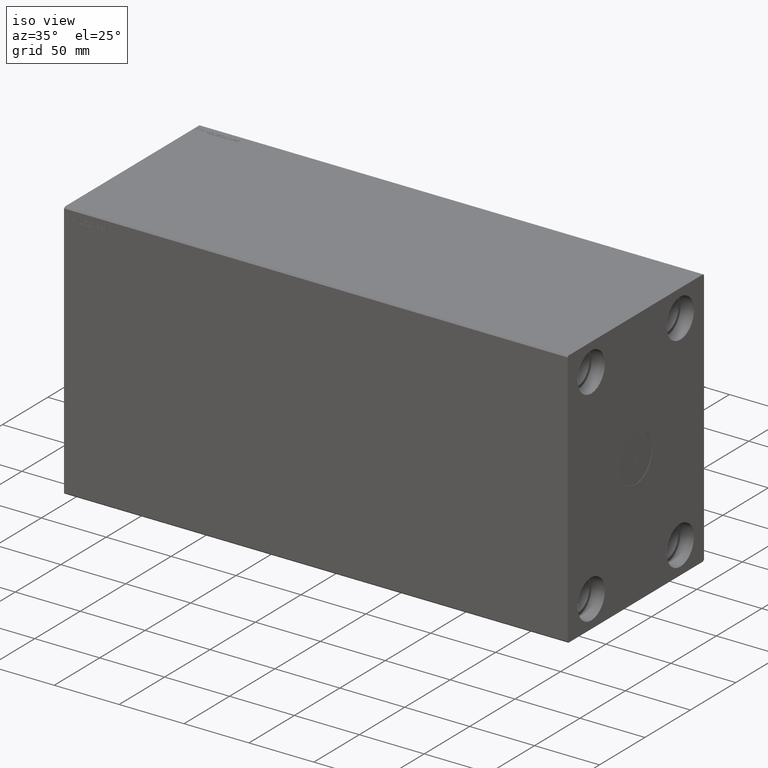
[diagram: clean part render]
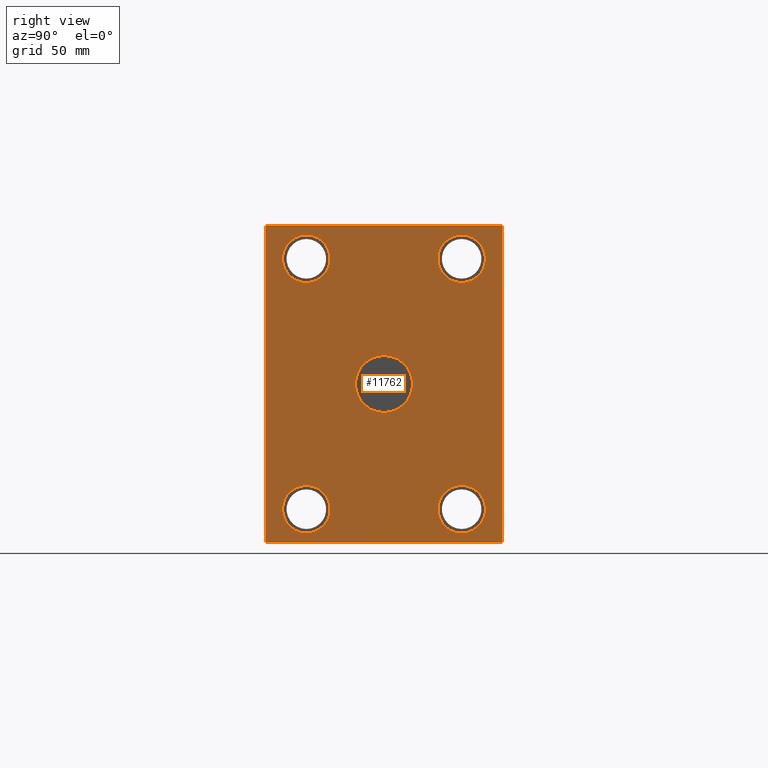
[diagram: tour spotlight — one face highlighted and labeled with its STEP entity id]
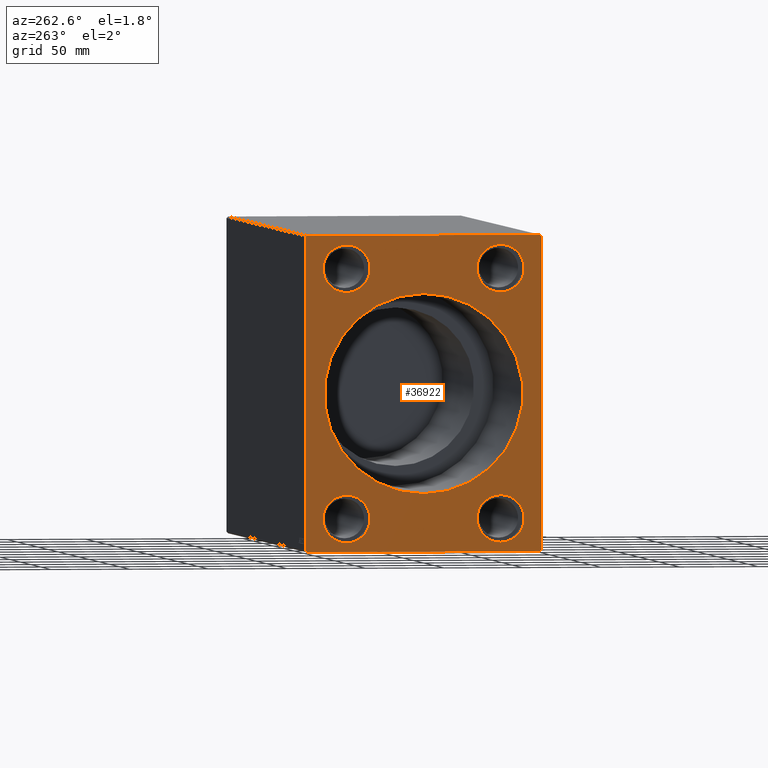
[diagram: tour spotlight — one face highlighted and labeled with its STEP entity id]
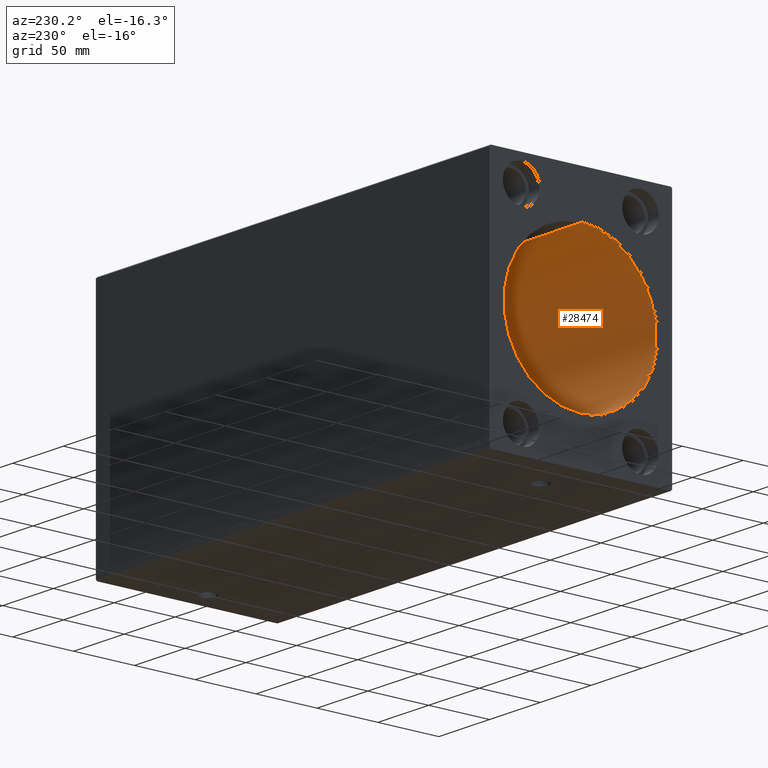
[diagram: tour spotlight — one face highlighted and labeled with its STEP entity id]
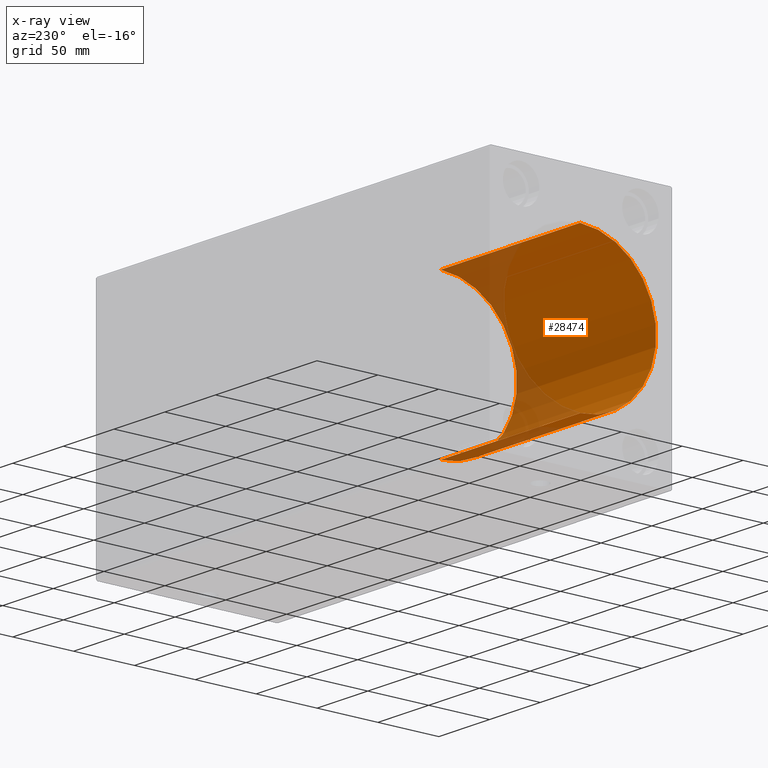
[diagram: x-ray of the same camera — body ghosted, this tour face saturated]
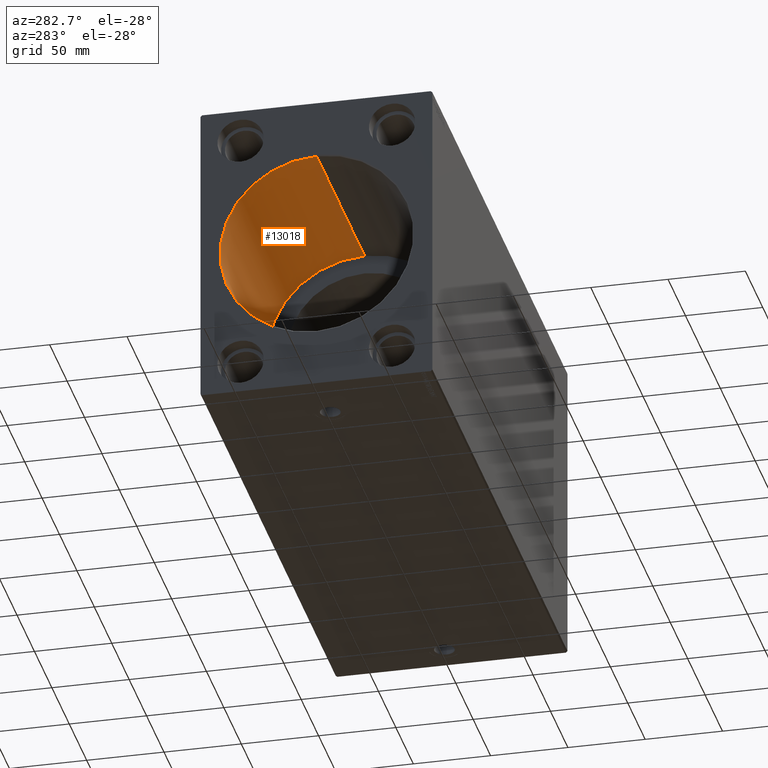
[diagram: tour spotlight — one face highlighted and labeled with its STEP entity id]
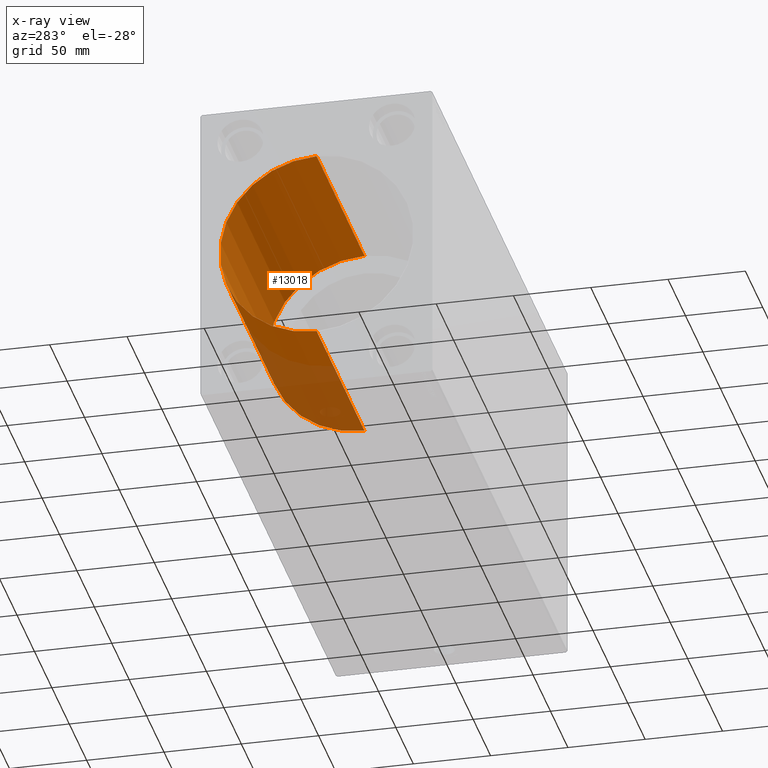
[diagram: x-ray of the same camera — body ghosted, this tour face saturated]
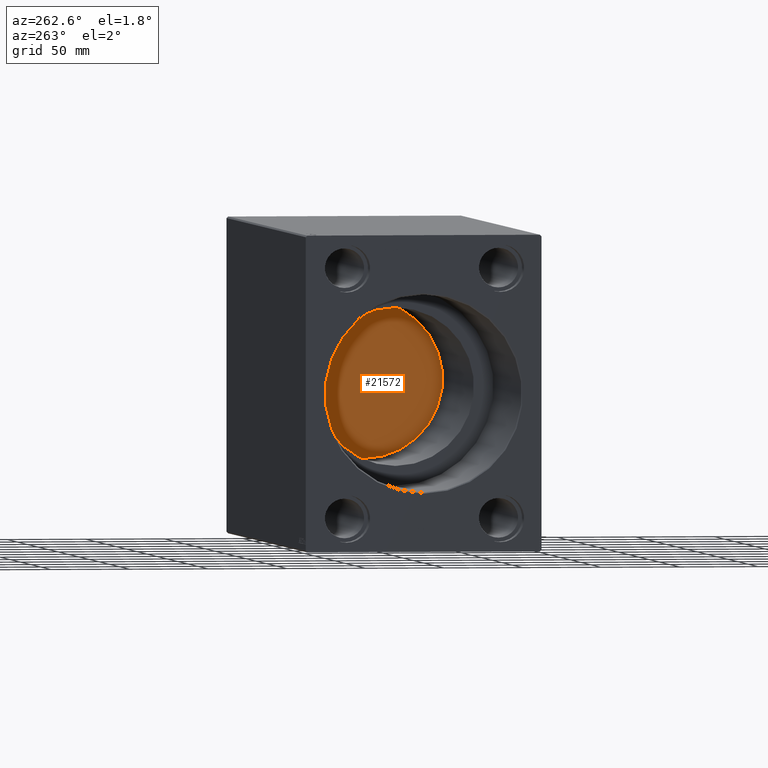
[diagram: tour spotlight — one face highlighted and labeled with its STEP entity id]
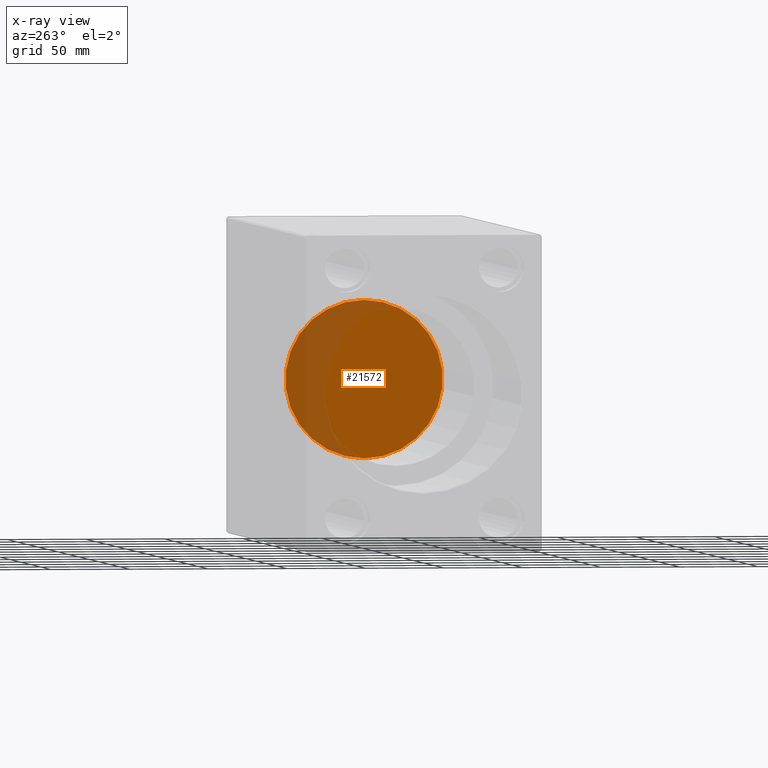
[diagram: x-ray of the same camera — body ghosted, this tour face saturated]
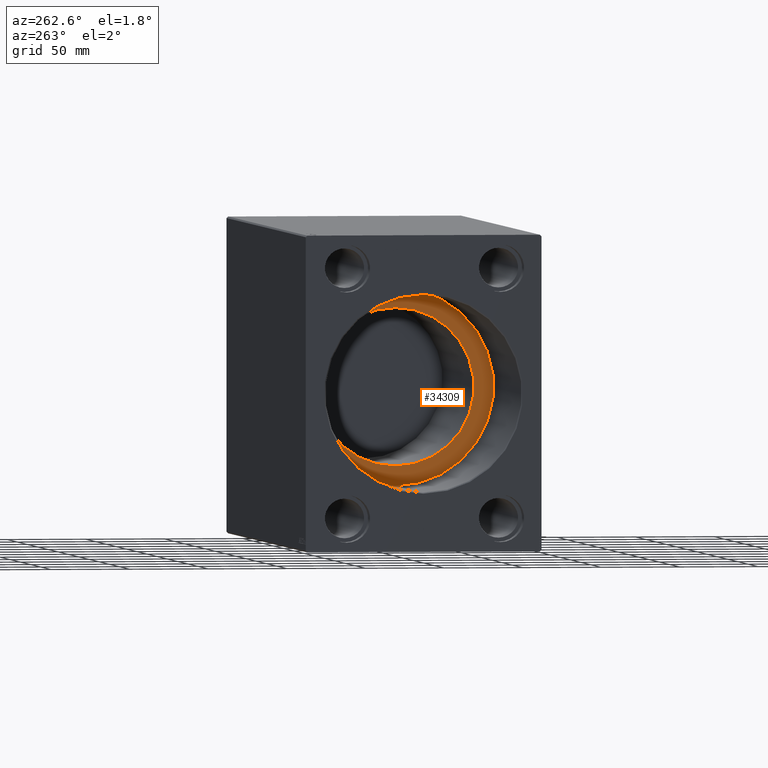
[diagram: tour spotlight — one face highlighted and labeled with its STEP entity id]
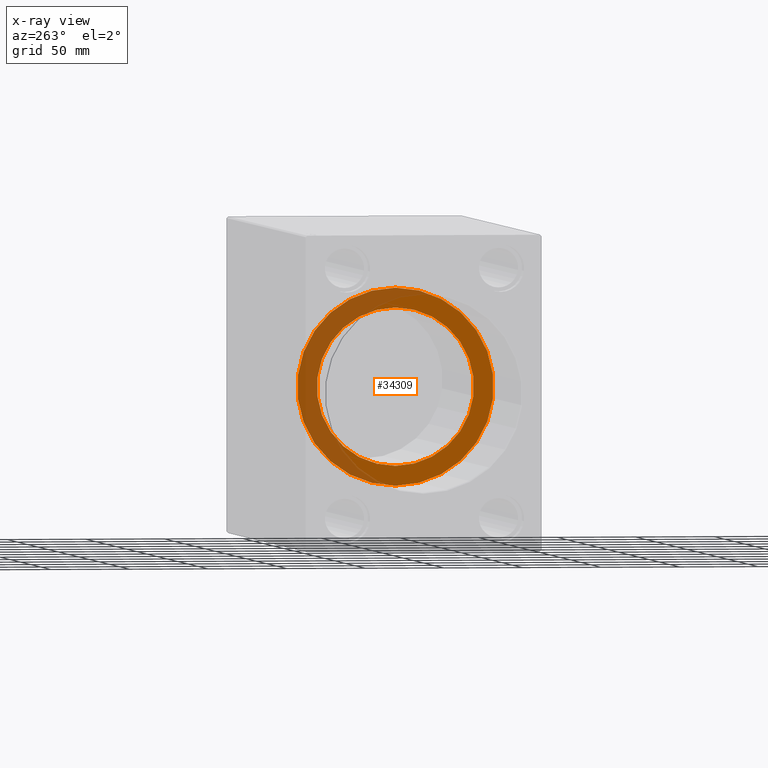
[diagram: x-ray of the same camera — body ghosted, this tour face saturated]
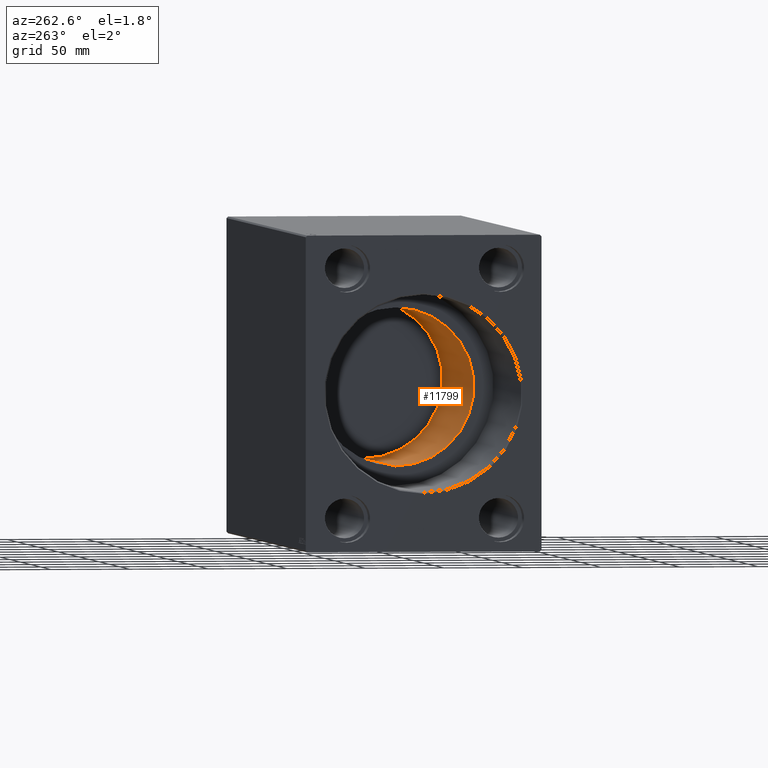
[diagram: tour spotlight — one face highlighted and labeled with its STEP entity id]
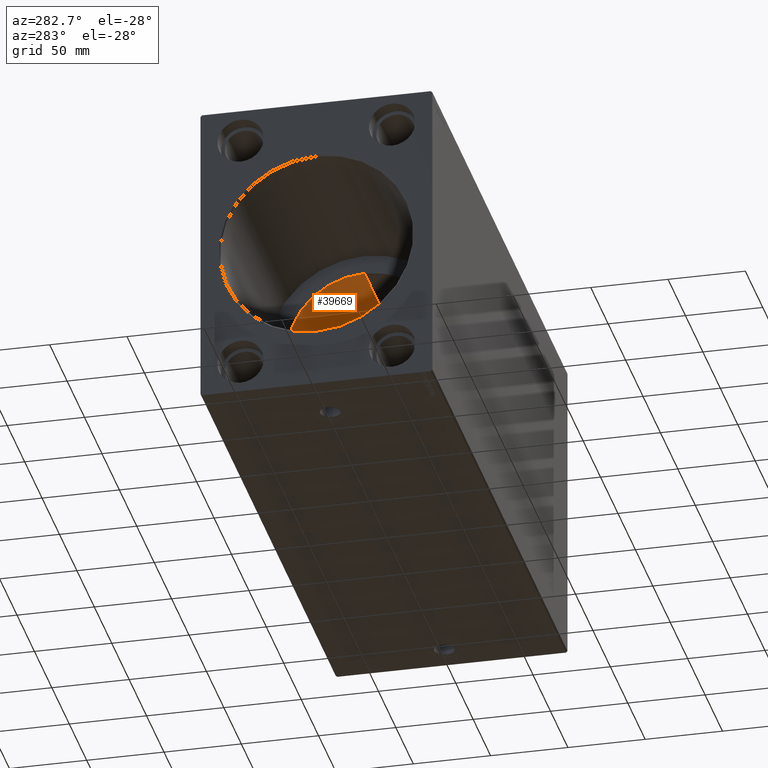
[diagram: tour spotlight — one face highlighted and labeled with its STEP entity id]
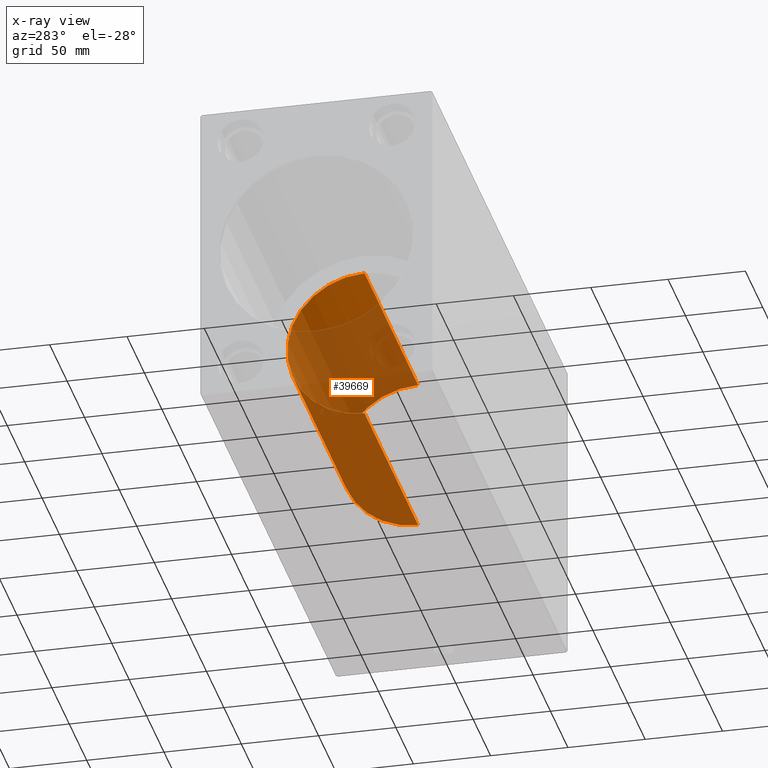
[diagram: x-ray of the same camera — body ghosted, this tour face saturated]
A machine part: a face-by-face anatomy tour. The part has 819 B-rep faces; the first image is the clean iso view, then the 8 largest visible faces are spotlighted one at a time (largest first), each with its STEP entity span.

Face 1 — right view, entity #11762. In plain terms, the highlighted planar face has unit normal (1, 0, 0).
Definition (entity closure, byte-faithful):
#44 = CARTESIAN_POINT ( 'NONE',  ( 388.0000000000000000, 74.00000000000000000, 99.99999999999995737 ) ) ;
#395 = ORIENTED_EDGE ( 'NONE', *, *, #24183, .T. ) ;
#890 = VERTEX_POINT ( 'NONE', #40201 ) ;
#1129 = DIRECTION ( 'NONE',  ( 0.000000000000000000, 0.000000000000000000, -1.000000000000000000 ) ) ;
#1149 = DIRECTION ( 'NONE',  ( 1.000000000000000000, -0.000000000000000000, -0.000000000000000000 ) ) ;
#1209 = DIRECTION ( 'NONE',  ( 0.000000000000000000, 0.000000000000000000, -1.000000000000000000 ) ) ;
#1340 = DIRECTION ( 'NONE',  ( 1.000000000000000000, 0.000000000000000000, 0.000000000000000000 ) ) ;
#1807 = EDGE_LOOP ( 'NONE', ( #8976, #36122 ) ) ;
#1899 = EDGE_CURVE ( 'NONE', #30948, #32729, #18828, .T. ) ;
#2277 = VECTOR ( 'NONE', #6193, 1000.000000000000114 ) ;
#2532 = DIRECTION ( 'NONE',  ( 0.000000000000000000, 0.000000000000000000, -1.000000000000000000 ) ) ;
#2586 = ORIENTED_EDGE ( 'NONE', *, *, #23808, .T. ) ;
#2654 = CARTESIAN_POINT ( 'NONE',  ( 388.0000000000000000, 49.00000000000000711, 94.00000000000001421 ) ) ;
#2717 = LINE ( 'NONE', #28842, #19119 ) ;
#3189 = VERTEX_POINT ( 'NONE', #9616 ) ;
#3331 = CIRCLE ( 'NONE', #12229, 15.00000000000000000 ) ;
#4424 = DIRECTION ( 'NONE',  ( 1.000000000000000000, -0.000000000000000000, -0.000000000000000000 ) ) ;
#4583 = FACE_BOUND ( 'NONE', #1807, .T. ) ;
#4611 = DIRECTION ( 'NONE',  ( 0.000000000000000000, -1.000000000000000000, -9.376883653928687363E-17 ) ) ;
#4719 = VECTOR ( 'NONE', #15012, 1000.000000000000114 ) ;
#5134 = EDGE_CURVE ( 'NONE', #32729, #30948, #29087, .T. ) ;
#5188 = AXIS2_PLACEMENT_3D ( 'NONE', #30477, #1149, #23405 ) ;
#5251 = LINE ( 'NONE', #15087, #15696 ) ;
#5334 = CARTESIAN_POINT ( 'NONE',  ( 388.0000000000000000, -74.00000000000000000, 99.99999999999994316 ) ) ;
#5382 = CARTESIAN_POINT ( 'NONE',  ( 388.0000000000000000, -75.00000000000000000, 98.99999999999994316 ) ) ;
#5738 = EDGE_LOOP ( 'NONE', ( #23827, #9370 ) ) ;
#6161 = DIRECTION ( 'NONE',  ( 0.000000000000000000, 0.000000000000000000, -1.000000000000000000 ) ) ;
#6193 = DIRECTION ( 'NONE',  ( 0.000000000000000000, 0.7071067811865474617, -0.7071067811865474617 ) ) ;
#6620 = ORIENTED_EDGE ( 'NONE', *, *, #21698, .T. ) ;
#6727 = CIRCLE ( 'NONE', #33413, 15.00000000000000000 ) ;
#7985 = CARTESIAN_POINT ( 'NONE',  ( 388.0000000000000000, -48.99999999999999289, 79.00000000000001421 ) ) ;
#8211 = DIRECTION ( 'NONE',  ( -1.000000000000000000, -0.000000000000000000, -0.000000000000000000 ) ) ;
#8385 = DIRECTION ( 'NONE',  ( 0.000000000000000000, -0.7071067811865474617, 0.7071067811865474617 ) ) ;
#8557 = ORIENTED_EDGE ( 'NONE', *, *, #34394, .T. ) ;
#8569 = ORIENTED_EDGE ( 'NONE', *, *, #16053, .F. ) ;
#8866 = VECTOR ( 'NONE', #4611, 1000.000000000000000 ) ;
#8976 = ORIENTED_EDGE ( 'NONE', *, *, #25764, .F. ) ;
#8982 = ORIENTED_EDGE ( 'NONE', *, *, #1899, .F. ) ;
#9370 = ORIENTED_EDGE ( 'NONE', *, *, #16431, .T. ) ;
#9612 = EDGE_CURVE ( 'NONE', #17503, #12232, #18242, .T. ) ;
#9616 = CARTESIAN_POINT ( 'NONE',  ( 388.0000000000000000, 2.204364238465235428E-15, 18.00000000000000000 ) ) ;
#9897 = LINE ( 'NONE', #22946, #36246 ) ;
#10136 = CARTESIAN_POINT ( 'NONE',  ( 388.0000000000000000, 74.00000000000001421, -100.0000000000000426 ) ) ;
#10419 = CARTESIAN_POINT ( 'NONE',  ( 388.0000000000000000, 49.00000000000000711, 79.00000000000001421 ) ) ;
#10975 = VERTEX_POINT ( 'NONE', #18555 ) ;
#10990 = DIRECTION ( 'NONE',  ( -1.000000000000000000, -0.000000000000000000, -0.000000000000000000 ) ) ;
#11196 = DIRECTION ( 'NONE',  ( 0.000000000000000000, 0.000000000000000000, 1.000000000000000000 ) ) ;
#11211 = DIRECTION ( 'NONE',  ( 1.000000000000000000, 0.000000000000000000, 0.000000000000000000 ) ) ;
#11762 = ADVANCED_FACE ( 'NONE', ( #4583, #31323, #21468, #21674, #15038, #33906 ), #40740, .T. ) ;
#12116 = EDGE_LOOP ( 'NONE', ( #33105, #8982 ) ) ;
#12229 = AXIS2_PLACEMENT_3D ( 'NONE', #36064, #36279, #26012 ) ;
#12232 = VERTEX_POINT ( 'NONE', #17252 ) ;
#12797 = CARTESIAN_POINT ( 'NONE',  ( 388.0000000000000000, -48.99999999999999289, -79.00000000000001421 ) ) ;
#12818 = CARTESIAN_POINT ( 'NONE',  ( 388.0000000000000000, -74.99999999999997158, -99.00000000000005684 ) ) ;
#13569 = AXIS2_PLACEMENT_3D ( 'NONE', #15459, #25106, #38162 ) ;
#14345 = VERTEX_POINT ( 'NONE', #44 ) ;
#14834 = CARTESIAN_POINT ( 'NONE',  ( 388.0000000000000000, 0.000000000000000000, 0.000000000000000000 ) ) ;
#15012 = DIRECTION ( 'NONE',  ( 0.000000000000000000, -0.7071067811865474617, -0.7071067811865474617 ) ) ;
#15038 = FACE_BOUND ( 'NONE', #28759, .T. ) ;
#15087 = CARTESIAN_POINT ( 'NONE',  ( 388.0000000000000000, 75.00000000000001421, -99.00000000000004263 ) ) ;
#15402 = AXIS2_PLACEMENT_3D ( 'NONE', #10419, #4424, #1209 ) ;
#15459 = CARTESIAN_POINT ( 'NONE',  ( 388.0000000000000000, 0.000000000000000000, 0.000000000000000000 ) ) ;
#15556 = CARTESIAN_POINT ( 'NONE',  ( 388.0000000000000000, 49.00000000000000711, 64.00000000000001421 ) ) ;
#15696 = VECTOR ( 'NONE', #41196, 1000.000000000000000 ) ;
#15700 = CIRCLE ( 'NONE', #17664, 15.00000000000000000 ) ;
#16053 = EDGE_CURVE ( 'NONE', #12232, #17503, #6727, .T. ) ;
#16234 = LINE ( 'NONE', #12818, #2277 ) ;
#16431 = EDGE_CURVE ( 'NONE', #10975, #19325, #3331, .T. ) ;
#17252 = CARTESIAN_POINT ( 'NONE',  ( 388.0000000000000000, -48.99999999999999289, -64.00000000000001421 ) ) ;
#17406 = AXIS2_PLACEMENT_3D ( 'NONE', #18666, #8211, #31119 ) ;
#17503 = VERTEX_POINT ( 'NONE', #22328 ) ;
#17664 = AXIS2_PLACEMENT_3D ( 'NONE', #27611, #21173, #24179 ) ;
#18217 = AXIS2_PLACEMENT_3D ( 'NONE', #12797, #21806, #2532 ) ;
#18242 = CIRCLE ( 'NONE', #18217, 15.00000000000000000 ) ;
#18427 = LINE ( 'NONE', #24451, #4719 ) ;
#18555 = CARTESIAN_POINT ( 'NONE',  ( 388.0000000000000000, 49.00000000000000711, -64.00000000000001421 ) ) ;
#18666 = CARTESIAN_POINT ( 'NONE',  ( 388.0000000000000000, -48.99999999999999289, 79.00000000000001421 ) ) ;
#18828 = CIRCLE ( 'NONE', #5188, 15.00000000000000000 ) ;
#19011 = ORIENTED_EDGE ( 'NONE', *, *, #23550, .T. ) ;
#19119 = VECTOR ( 'NONE', #37836, 1000.000000000000000 ) ;
#19208 = CARTESIAN_POINT ( 'NONE',  ( 388.0000000000000000, -48.99999999999999289, -79.00000000000001421 ) ) ;
#19281 = EDGE_CURVE ( 'NONE', #3189, #41711, #30765, .T. ) ;
#19291 = VERTEX_POINT ( 'NONE', #38791 ) ;
#19325 = VERTEX_POINT ( 'NONE', #25527 ) ;
#19327 = CARTESIAN_POINT ( 'NONE',  ( 388.0000000000000000, 75.00000000000000000, 98.99999999999995737 ) ) ;
#19380 = CIRCLE ( 'NONE', #31723, 15.00000000000000000 ) ;
#19709 = EDGE_LOOP ( 'NONE', ( #26923, #19011, #6620, #41830, #42035, #2586, #25666, #395 ) ) ;
#19850 = EDGE_CURVE ( 'NONE', #19325, #10975, #15700, .T. ) ;
#20340 = EDGE_LOOP ( 'NONE', ( #8557, #35927 ) ) ;
#20816 = CARTESIAN_POINT ( 'NONE',  ( 388.0000000000000000, 0.000000000000000000, 0.000000000000000000 ) ) ;
#21173 = DIRECTION ( 'NONE',  ( -1.000000000000000000, -0.000000000000000000, -0.000000000000000000 ) ) ;
#21380 = CARTESIAN_POINT ( 'NONE',  ( 388.0000000000000000, 75.00000000000001421, -99.00000000000004263 ) ) ;
#21468 = FACE_BOUND ( 'NONE', #5738, .T. ) ;
#21674 = FACE_OUTER_BOUND ( 'NONE', #19709, .T. ) ;
#21698 = EDGE_CURVE ( 'NONE', #27888, #25910, #18427, .T. ) ;
#21806 = DIRECTION ( 'NONE',  ( 1.000000000000000000, -0.000000000000000000, -0.000000000000000000 ) ) ;
#21810 = CARTESIAN_POINT ( 'NONE',  ( 388.0000000000000000, 74.00000000000001421, -100.0000000000000426 ) ) ;
#22328 = CARTESIAN_POINT ( 'NONE',  ( 388.0000000000000000, -48.99999999999999289, -94.00000000000001421 ) ) ;
#22946 = CARTESIAN_POINT ( 'NONE',  ( 388.0000000000000000, -75.00000000000000000, 98.99999999999994316 ) ) ;
#23216 = VERTEX_POINT ( 'NONE', #24768 ) ;
#23405 = DIRECTION ( 'NONE',  ( 0.000000000000000000, 0.000000000000000000, -1.000000000000000000 ) ) ;
#23550 = EDGE_CURVE ( 'NONE', #14345, #27888, #33938, .T. ) ;
#23615 = VERTEX_POINT ( 'NONE', #19327 ) ;
#23808 = EDGE_CURVE ( 'NONE', #40919, #35040, #2717, .T. ) ;
#23827 = ORIENTED_EDGE ( 'NONE', *, *, #19850, .T. ) ;
#24179 = DIRECTION ( 'NONE',  ( 0.000000000000000000, 0.000000000000000000, 1.000000000000000000 ) ) ;
#24183 = EDGE_CURVE ( 'NONE', #27019, #23615, #5251, .T. ) ;
#24451 = CARTESIAN_POINT ( 'NONE',  ( 388.0000000000000000, -74.00000000000000000, 99.99999999999994316 ) ) ;
#24768 = CARTESIAN_POINT ( 'NONE',  ( 388.0000000000000000, -48.99999999999999289, 94.00000000000001421 ) ) ;
#25064 = EDGE_CURVE ( 'NONE', #25910, #890, #9897, .T. ) ;
#25106 = DIRECTION ( 'NONE',  ( 1.000000000000000000, 0.000000000000000000, 0.000000000000000000 ) ) ;
#25308 = AXIS2_PLACEMENT_3D ( 'NONE', #20816, #1340, #1129 ) ;
#25527 = CARTESIAN_POINT ( 'NONE',  ( 388.0000000000000000, 49.00000000000000711, -94.00000000000001421 ) ) ;
#25666 = ORIENTED_EDGE ( 'NONE', *, *, #38452, .T. ) ;
#25764 = EDGE_CURVE ( 'NONE', #41711, #3189, #41713, .T. ) ;
#25818 = EDGE_CURVE ( 'NONE', #23615, #14345, #41542, .T. ) ;
#25910 = VERTEX_POINT ( 'NONE', #5382 ) ;
#26012 = DIRECTION ( 'NONE',  ( 0.000000000000000000, 0.000000000000000000, 1.000000000000000000 ) ) ;
#26923 = ORIENTED_EDGE ( 'NONE', *, *, #25818, .T. ) ;
#27019 = VERTEX_POINT ( 'NONE', #21380 ) ;
#27449 = CARTESIAN_POINT ( 'NONE',  ( 388.0000000000000000, 0.000000000000000000, -18.00000000000000000 ) ) ;
#27605 = VECTOR ( 'NONE', #31667, 1000.000000000000114 ) ;
#27611 = CARTESIAN_POINT ( 'NONE',  ( 388.0000000000000000, 49.00000000000000711, -79.00000000000001421 ) ) ;
#27888 = VERTEX_POINT ( 'NONE', #5334 ) ;
#28323 = DIRECTION ( 'NONE',  ( 0.000000000000000000, 0.000000000000000000, -1.000000000000000000 ) ) ;
#28736 = VECTOR ( 'NONE', #8385, 1000.000000000000114 ) ;
#28759 = EDGE_LOOP ( 'NONE', ( #28976, #8569 ) ) ;
#28842 = CARTESIAN_POINT ( 'NONE',  ( 388.0000000000000000, -73.99999999999998579, -100.0000000000000426 ) ) ;
#28976 = ORIENTED_EDGE ( 'NONE', *, *, #9612, .F. ) ;
#29087 = CIRCLE ( 'NONE', #15402, 15.00000000000000000 ) ;
#30477 = CARTESIAN_POINT ( 'NONE',  ( 388.0000000000000000, 49.00000000000000711, 79.00000000000001421 ) ) ;
#30765 = CIRCLE ( 'NONE', #13569, 18.00000000000000000 ) ;
#30948 = VERTEX_POINT ( 'NONE', #2654 ) ;
#31119 = DIRECTION ( 'NONE',  ( 0.000000000000000000, 0.000000000000000000, 1.000000000000000000 ) ) ;
#31149 = CARTESIAN_POINT ( 'NONE',  ( 388.0000000000000000, 74.00000000000000000, 99.99999999999995737 ) ) ;
#31323 = FACE_BOUND ( 'NONE', #20340, .T. ) ;
#31622 = EDGE_CURVE ( 'NONE', #890, #40919, #16234, .T. ) ;
#31667 = DIRECTION ( 'NONE',  ( 0.000000000000000000, 0.7071067811865474617, 0.7071067811865474617 ) ) ;
#31723 = AXIS2_PLACEMENT_3D ( 'NONE', #7985, #10990, #11196 ) ;
#32729 = VERTEX_POINT ( 'NONE', #15556 ) ;
#33105 = ORIENTED_EDGE ( 'NONE', *, *, #5134, .F. ) ;
#33413 = AXIS2_PLACEMENT_3D ( 'NONE', #19208, #42122, #6161 ) ;
#33906 = FACE_BOUND ( 'NONE', #12116, .T. ) ;
#33938 = LINE ( 'NONE', #31149, #8866 ) ;
#34039 = CARTESIAN_POINT ( 'NONE',  ( 388.0000000000000000, -73.99999999999998579, -100.0000000000000426 ) ) ;
#34394 = EDGE_CURVE ( 'NONE', #19291, #23216, #19380, .T. ) ;
#34510 = CARTESIAN_POINT ( 'NONE',  ( 388.0000000000000000, 75.00000000000000000, 98.99999999999995737 ) ) ;
#35040 = VERTEX_POINT ( 'NONE', #10136 ) ;
#35863 = CIRCLE ( 'NONE', #17406, 15.00000000000000000 ) ;
#35927 = ORIENTED_EDGE ( 'NONE', *, *, #41422, .T. ) ;
#36007 = DIRECTION ( 'NONE',  ( 0.000000000000000000, 1.401796748264086446E-16, -1.000000000000000000 ) ) ;
#36064 = CARTESIAN_POINT ( 'NONE',  ( 388.0000000000000000, 49.00000000000000711, -79.00000000000001421 ) ) ;
#36122 = ORIENTED_EDGE ( 'NONE', *, *, #19281, .F. ) ;
#36246 = VECTOR ( 'NONE', #36007, 1000.000000000000000 ) ;
#36279 = DIRECTION ( 'NONE',  ( -1.000000000000000000, -0.000000000000000000, -0.000000000000000000 ) ) ;
#37452 = AXIS2_PLACEMENT_3D ( 'NONE', #14834, #11211, #28323 ) ;
#37836 = DIRECTION ( 'NONE',  ( 0.000000000000000000, 1.000000000000000000, 0.000000000000000000 ) ) ;
#38162 = DIRECTION ( 'NONE',  ( 0.000000000000000000, 0.000000000000000000, -1.000000000000000000 ) ) ;
#38452 = EDGE_CURVE ( 'NONE', #35040, #27019, #41920, .T. ) ;
#38791 = CARTESIAN_POINT ( 'NONE',  ( 388.0000000000000000, -48.99999999999999289, 64.00000000000001421 ) ) ;
#40201 = CARTESIAN_POINT ( 'NONE',  ( 388.0000000000000000, -74.99999999999997158, -99.00000000000005684 ) ) ;
#40740 = PLANE ( 'NONE',  #37452 ) ;
#40919 = VERTEX_POINT ( 'NONE', #34039 ) ;
#41196 = DIRECTION ( 'NONE',  ( 0.000000000000000000, -7.008983741320432232E-17, 1.000000000000000000 ) ) ;
#41422 = EDGE_CURVE ( 'NONE', #23216, #19291, #35863, .T. ) ;
#41542 = LINE ( 'NONE', #34510, #28736 ) ;
#41711 = VERTEX_POINT ( 'NONE', #27449 ) ;
#41713 = CIRCLE ( 'NONE', #25308, 18.00000000000000000 ) ;
#41830 = ORIENTED_EDGE ( 'NONE', *, *, #25064, .T. ) ;
#41920 = LINE ( 'NONE', #21810, #27605 ) ;
#42035 = ORIENTED_EDGE ( 'NONE', *, *, #31622, .T. ) ;
#42122 = DIRECTION ( 'NONE',  ( 1.000000000000000000, -0.000000000000000000, -0.000000000000000000 ) ) ;

Face 2 — auxiliary view, entity #36922. In plain terms, the highlighted planar face has unit normal (1, 0, 0).
Definition (entity closure, byte-faithful):
#217 = CARTESIAN_POINT ( 'NONE',  ( 0.000000000000000000, 0.000000000000000000, 0.000000000000000000 ) ) ;
#487 = CARTESIAN_POINT ( 'NONE',  ( 0.000000000000000000, 49.00000000000000711, -79.00000000000001421 ) ) ;
#596 = LINE ( 'NONE', #27929, #15756 ) ;
#811 = CARTESIAN_POINT ( 'NONE',  ( 0.000000000000000000, -48.99999999999999289, -64.00000000000001421 ) ) ;
#1086 = VERTEX_POINT ( 'NONE', #36944 ) ;
#1430 = DIRECTION ( 'NONE',  ( -1.000000000000000000, 0.000000000000000000, 0.000000000000000000 ) ) ;
#1728 = CIRCLE ( 'NONE', #16770, 63.19999999999998153 ) ;
#1790 = CIRCLE ( 'NONE', #25716, 15.00000000000000000 ) ;
#2007 = CARTESIAN_POINT ( 'NONE',  ( 0.000000000000000000, -48.99999999999999289, 64.00000000000001421 ) ) ;
#2408 = CARTESIAN_POINT ( 'NONE',  ( 0.000000000000000000, -48.99999999999999289, -79.00000000000001421 ) ) ;
#2736 = EDGE_LOOP ( 'NONE', ( #35354, #35408 ) ) ;
#2756 = CIRCLE ( 'NONE', #13700, 15.00000000000000000 ) ;
#3033 = VERTEX_POINT ( 'NONE', #23579 ) ;
#4174 = VERTEX_POINT ( 'NONE', #28831 ) ;
#4253 = CARTESIAN_POINT ( 'NONE',  ( 0.000000000000000000, 75.00000000000000000, 98.99999999999995737 ) ) ;
#4485 = LINE ( 'NONE', #14319, #28473 ) ;
#4594 = DIRECTION ( 'NONE',  ( 0.000000000000000000, -7.008983741320432232E-17, 1.000000000000000000 ) ) ;
#4776 = DIRECTION ( 'NONE',  ( 1.000000000000000000, -0.000000000000000000, -0.000000000000000000 ) ) ;
#4987 = EDGE_CURVE ( 'NONE', #3033, #4174, #32271, .T. ) ;
#5010 = CIRCLE ( 'NONE', #33730, 15.00000000000000000 ) ;
#5194 = ORIENTED_EDGE ( 'NONE', *, *, #4987, .F. ) ;
#5662 = EDGE_CURVE ( 'NONE', #39670, #8899, #35919, .T. ) ;
#5785 = CARTESIAN_POINT ( 'NONE',  ( 0.000000000000000000, -48.99999999999999289, -79.00000000000001421 ) ) ;
#5788 = DIRECTION ( 'NONE',  ( 0.000000000000000000, 0.000000000000000000, -1.000000000000000000 ) ) ;
#5834 = DIRECTION ( 'NONE',  ( 1.000000000000000000, -0.000000000000000000, -0.000000000000000000 ) ) ;
#5977 = EDGE_CURVE ( 'NONE', #8899, #39670, #1728, .T. ) ;
#6089 = EDGE_CURVE ( 'NONE', #26447, #10122, #25685, .T. ) ;
#6703 = EDGE_CURVE ( 'NONE', #26627, #14763, #19104, .T. ) ;
#6765 = CARTESIAN_POINT ( 'NONE',  ( 0.000000000000000000, -48.99999999999999289, 94.00000000000001421 ) ) ;
#6796 = CARTESIAN_POINT ( 'NONE',  ( 0.000000000000000000, 7.739767770611268936E-15, -63.19999999999998153 ) ) ;
#6844 = CARTESIAN_POINT ( 'NONE',  ( 0.000000000000000000, 49.00000000000000711, 79.00000000000001421 ) ) ;
#7026 = ORIENTED_EDGE ( 'NONE', *, *, #41408, .T. ) ;
#7610 = VERTEX_POINT ( 'NONE', #8782 ) ;
#7656 = EDGE_CURVE ( 'NONE', #9715, #7610, #1790, .T. ) ;
#7923 = EDGE_CURVE ( 'NONE', #4174, #13225, #4485, .T. ) ;
#7938 = VECTOR ( 'NONE', #35598, 1000.000000000000114 ) ;
#8782 = CARTESIAN_POINT ( 'NONE',  ( 0.000000000000000000, -48.99999999999999289, -94.00000000000001421 ) ) ;
#8899 = VERTEX_POINT ( 'NONE', #6796 ) ;
#9715 = VERTEX_POINT ( 'NONE', #811 ) ;
#10122 = VERTEX_POINT ( 'NONE', #6765 ) ;
#10707 = CARTESIAN_POINT ( 'NONE',  ( 0.000000000000000000, 74.00000000000001421, -100.0000000000000426 ) ) ;
#10829 = VERTEX_POINT ( 'NONE', #4253 ) ;
#10993 = CIRCLE ( 'NONE', #16430, 15.00000000000000000 ) ;
#10995 = DIRECTION ( 'NONE',  ( 0.000000000000000000, 0.000000000000000000, -1.000000000000000000 ) ) ;
#11677 = DIRECTION ( 'NONE',  ( 0.000000000000000000, 1.401796748264086446E-16, -1.000000000000000000 ) ) ;
#11997 = FACE_BOUND ( 'NONE', #26942, .T. ) ;
#12085 = CARTESIAN_POINT ( 'NONE',  ( 0.000000000000000000, -48.99999999999999289, 79.00000000000001421 ) ) ;
#12458 = DIRECTION ( 'NONE',  ( 0.000000000000000000, 0.000000000000000000, -1.000000000000000000 ) ) ;
#12563 = EDGE_LOOP ( 'NONE', ( #28189, #16861 ) ) ;
#12564 = DIRECTION ( 'NONE',  ( 0.000000000000000000, 0.7071067811865474617, -0.7071067811865474617 ) ) ;
#12834 = FACE_BOUND ( 'NONE', #2736, .T. ) ;
#13225 = VERTEX_POINT ( 'NONE', #33041 ) ;
#13256 = DIRECTION ( 'NONE',  ( 1.000000000000000000, -0.000000000000000000, -0.000000000000000000 ) ) ;
#13348 = ORIENTED_EDGE ( 'NONE', *, *, #37561, .F. ) ;
#13533 = DIRECTION ( 'NONE',  ( 0.000000000000000000, 0.000000000000000000, 1.000000000000000000 ) ) ;
#13700 = AXIS2_PLACEMENT_3D ( 'NONE', #36280, #33073, #29647 ) ;
#13929 = EDGE_CURVE ( 'NONE', #10122, #26447, #19008, .T. ) ;
#14319 = CARTESIAN_POINT ( 'NONE',  ( 0.000000000000000000, -73.99999999999998579, -100.0000000000000426 ) ) ;
#14357 = CARTESIAN_POINT ( 'NONE',  ( 0.000000000000000000, 49.00000000000000711, 94.00000000000001421 ) ) ;
#14511 = ORIENTED_EDGE ( 'NONE', *, *, #39968, .T. ) ;
#14763 = VERTEX_POINT ( 'NONE', #15919 ) ;
#14853 = DIRECTION ( 'NONE',  ( 0.000000000000000000, -1.000000000000000000, -9.376883653928687363E-17 ) ) ;
#15756 = VECTOR ( 'NONE', #14853, 1000.000000000000000 ) ;
#15800 = ORIENTED_EDGE ( 'NONE', *, *, #27149, .F. ) ;
#15802 = ORIENTED_EDGE ( 'NONE', *, *, #7923, .F. ) ;
#15919 = CARTESIAN_POINT ( 'NONE',  ( 0.000000000000000000, -75.00000000000000000, 98.99999999999994316 ) ) ;
#16016 = AXIS2_PLACEMENT_3D ( 'NONE', #2408, #5834, #12458 ) ;
#16430 = AXIS2_PLACEMENT_3D ( 'NONE', #487, #28964, #13533 ) ;
#16652 = AXIS2_PLACEMENT_3D ( 'NONE', #20185, #4776, #10995 ) ;
#16770 = AXIS2_PLACEMENT_3D ( 'NONE', #26276, #39321, #19205 ) ;
#16861 = ORIENTED_EDGE ( 'NONE', *, *, #5977, .T. ) ;
#16902 = EDGE_CURVE ( 'NONE', #10829, #35489, #35345, .T. ) ;
#17425 = LINE ( 'NONE', #30280, #18678 ) ;
#17647 = VERTEX_POINT ( 'NONE', #37505 ) ;
#17913 = ORIENTED_EDGE ( 'NONE', *, *, #7656, .T. ) ;
#18009 = CARTESIAN_POINT ( 'NONE',  ( 0.000000000000000000, 75.00000000000000000, 98.99999999999995737 ) ) ;
#18087 = LINE ( 'NONE', #31790, #30760 ) ;
#18621 = FACE_BOUND ( 'NONE', #34941, .T. ) ;
#18678 = VECTOR ( 'NONE', #4594, 1000.000000000000000 ) ;
#18823 = AXIS2_PLACEMENT_3D ( 'NONE', #27555, #1430, #33327 ) ;
#19008 = CIRCLE ( 'NONE', #36815, 15.00000000000000000 ) ;
#19104 = LINE ( 'NONE', #42012, #7938 ) ;
#19205 = DIRECTION ( 'NONE',  ( 0.000000000000000000, 0.000000000000000000, -1.000000000000000000 ) ) ;
#19925 = CARTESIAN_POINT ( 'NONE',  ( 0.000000000000000000, 49.00000000000000711, -94.00000000000001421 ) ) ;
#20185 = CARTESIAN_POINT ( 'NONE',  ( 0.000000000000000000, 49.00000000000000711, 79.00000000000001421 ) ) ;
#20320 = DIRECTION ( 'NONE',  ( 1.000000000000000000, 0.000000000000000000, 0.000000000000000000 ) ) ;
#20346 = ORIENTED_EDGE ( 'NONE', *, *, #26628, .F. ) ;
#20554 = EDGE_CURVE ( 'NONE', #13225, #17647, #29969, .T. ) ;
#20810 = CIRCLE ( 'NONE', #16652, 15.00000000000000000 ) ;
#22621 = CARTESIAN_POINT ( 'NONE',  ( 0.000000000000000000, -74.99999999999997158, -99.00000000000005684 ) ) ;
#22729 = EDGE_LOOP ( 'NONE', ( #20346, #39240 ) ) ;
#23579 = CARTESIAN_POINT ( 'NONE',  ( 0.000000000000000000, -74.99999999999997158, -99.00000000000005684 ) ) ;
#23634 = ORIENTED_EDGE ( 'NONE', *, *, #24054, .F. ) ;
#24054 = EDGE_CURVE ( 'NONE', #14763, #3033, #18087, .T. ) ;
#24284 = VERTEX_POINT ( 'NONE', #19925 ) ;
#25058 = PLANE ( 'NONE',  #41233 ) ;
#25394 = EDGE_CURVE ( 'NONE', #24284, #1086, #2756, .T. ) ;
#25685 = CIRCLE ( 'NONE', #18823, 15.00000000000000000 ) ;
#25716 = AXIS2_PLACEMENT_3D ( 'NONE', #5785, #38534, #35535 ) ;
#25928 = VECTOR ( 'NONE', #34927, 1000.000000000000114 ) ;
#26276 = CARTESIAN_POINT ( 'NONE',  ( 0.000000000000000000, 0.000000000000000000, 0.000000000000000000 ) ) ;
#26303 = CIRCLE ( 'NONE', #16016, 15.00000000000000000 ) ;
#26447 = VERTEX_POINT ( 'NONE', #2007 ) ;
#26512 = ORIENTED_EDGE ( 'NONE', *, *, #20554, .F. ) ;
#26627 = VERTEX_POINT ( 'NONE', #39008 ) ;
#26628 = EDGE_CURVE ( 'NONE', #1086, #24284, #10993, .T. ) ;
#26942 = EDGE_LOOP ( 'NONE', ( #14511, #40406 ) ) ;
#27149 = EDGE_CURVE ( 'NONE', #35489, #26627, #596, .T. ) ;
#27372 = ORIENTED_EDGE ( 'NONE', *, *, #6703, .F. ) ;
#27555 = CARTESIAN_POINT ( 'NONE',  ( 0.000000000000000000, -48.99999999999999289, 79.00000000000001421 ) ) ;
#27929 = CARTESIAN_POINT ( 'NONE',  ( 0.000000000000000000, 74.00000000000000000, 99.99999999999995737 ) ) ;
#28189 = ORIENTED_EDGE ( 'NONE', *, *, #5662, .T. ) ;
#28279 = FACE_OUTER_BOUND ( 'NONE', #33458, .T. ) ;
#28473 = VECTOR ( 'NONE', #31018, 1000.000000000000000 ) ;
#28831 = CARTESIAN_POINT ( 'NONE',  ( 0.000000000000000000, -73.99999999999998579, -100.0000000000000426 ) ) ;
#28964 = DIRECTION ( 'NONE',  ( -1.000000000000000000, 0.000000000000000000, 0.000000000000000000 ) ) ;
#29647 = DIRECTION ( 'NONE',  ( 0.000000000000000000, 0.000000000000000000, 1.000000000000000000 ) ) ;
#29969 = LINE ( 'NONE', #10707, #36155 ) ;
#30280 = CARTESIAN_POINT ( 'NONE',  ( 0.000000000000000000, 75.00000000000001421, -99.00000000000004263 ) ) ;
#30371 = VERTEX_POINT ( 'NONE', #36070 ) ;
#30730 = CARTESIAN_POINT ( 'NONE',  ( 0.000000000000000000, 0.000000000000000000, 63.19999999999998153 ) ) ;
#30760 = VECTOR ( 'NONE', #11677, 1000.000000000000000 ) ;
#31018 = DIRECTION ( 'NONE',  ( 0.000000000000000000, 1.000000000000000000, 0.000000000000000000 ) ) ;
#31105 = VECTOR ( 'NONE', #12564, 1000.000000000000114 ) ;
#31136 = AXIS2_PLACEMENT_3D ( 'NONE', #217, #20320, #33383 ) ;
#31506 = VERTEX_POINT ( 'NONE', #14357 ) ;
#31699 = CARTESIAN_POINT ( 'NONE',  ( 0.000000000000000000, 0.000000000000000000, 0.000000000000000000 ) ) ;
#31790 = CARTESIAN_POINT ( 'NONE',  ( 0.000000000000000000, -75.00000000000000000, 98.99999999999994316 ) ) ;
#32271 = LINE ( 'NONE', #22621, #31105 ) ;
#33041 = CARTESIAN_POINT ( 'NONE',  ( 0.000000000000000000, 74.00000000000001421, -100.0000000000000426 ) ) ;
#33073 = DIRECTION ( 'NONE',  ( -1.000000000000000000, 0.000000000000000000, 0.000000000000000000 ) ) ;
#33169 = DIRECTION ( 'NONE',  ( 0.000000000000000000, 0.000000000000000000, -1.000000000000000000 ) ) ;
#33327 = DIRECTION ( 'NONE',  ( 0.000000000000000000, 0.000000000000000000, 1.000000000000000000 ) ) ;
#33383 = DIRECTION ( 'NONE',  ( 0.000000000000000000, 0.000000000000000000, -1.000000000000000000 ) ) ;
#33458 = EDGE_LOOP ( 'NONE', ( #39065, #13348, #26512, #15802, #5194, #23634, #27372, #15800 ) ) ;
#33730 = AXIS2_PLACEMENT_3D ( 'NONE', #6844, #13256, #33169 ) ;
#34927 = DIRECTION ( 'NONE',  ( 0.000000000000000000, -0.7071067811865474617, 0.7071067811865474617 ) ) ;
#34941 = EDGE_LOOP ( 'NONE', ( #17913, #7026 ) ) ;
#35119 = FACE_BOUND ( 'NONE', #12563, .T. ) ;
#35345 = LINE ( 'NONE', #18009, #25928 ) ;
#35354 = ORIENTED_EDGE ( 'NONE', *, *, #13929, .F. ) ;
#35408 = ORIENTED_EDGE ( 'NONE', *, *, #6089, .F. ) ;
#35489 = VERTEX_POINT ( 'NONE', #35935 ) ;
#35535 = DIRECTION ( 'NONE',  ( 0.000000000000000000, 0.000000000000000000, -1.000000000000000000 ) ) ;
#35598 = DIRECTION ( 'NONE',  ( 0.000000000000000000, -0.7071067811865474617, -0.7071067811865474617 ) ) ;
#35919 = CIRCLE ( 'NONE', #31136, 63.19999999999998153 ) ;
#35935 = CARTESIAN_POINT ( 'NONE',  ( 0.000000000000000000, 74.00000000000000000, 99.99999999999995737 ) ) ;
#36070 = CARTESIAN_POINT ( 'NONE',  ( 0.000000000000000000, 49.00000000000000711, 64.00000000000001421 ) ) ;
#36155 = VECTOR ( 'NONE', #37027, 1000.000000000000114 ) ;
#36280 = CARTESIAN_POINT ( 'NONE',  ( 0.000000000000000000, 49.00000000000000711, -79.00000000000001421 ) ) ;
#36815 = AXIS2_PLACEMENT_3D ( 'NONE', #12085, #38622, #38201 ) ;
#36922 = ADVANCED_FACE ( 'NONE', ( #12834, #41315, #35119, #28279, #18621, #11997 ), #25058, .F. ) ;
#36944 = CARTESIAN_POINT ( 'NONE',  ( 0.000000000000000000, 49.00000000000000711, -64.00000000000001421 ) ) ;
#36988 = EDGE_CURVE ( 'NONE', #30371, #31506, #5010, .T. ) ;
#37027 = DIRECTION ( 'NONE',  ( 0.000000000000000000, 0.7071067811865474617, 0.7071067811865474617 ) ) ;
#37505 = CARTESIAN_POINT ( 'NONE',  ( 0.000000000000000000, 75.00000000000001421, -99.00000000000004263 ) ) ;
#37561 = EDGE_CURVE ( 'NONE', #17647, #10829, #17425, .T. ) ;
#38109 = DIRECTION ( 'NONE',  ( 1.000000000000000000, 0.000000000000000000, 0.000000000000000000 ) ) ;
#38201 = DIRECTION ( 'NONE',  ( 0.000000000000000000, 0.000000000000000000, 1.000000000000000000 ) ) ;
#38534 = DIRECTION ( 'NONE',  ( 1.000000000000000000, -0.000000000000000000, -0.000000000000000000 ) ) ;
#38622 = DIRECTION ( 'NONE',  ( -1.000000000000000000, 0.000000000000000000, 0.000000000000000000 ) ) ;
#39008 = CARTESIAN_POINT ( 'NONE',  ( 0.000000000000000000, -74.00000000000000000, 99.99999999999994316 ) ) ;
#39065 = ORIENTED_EDGE ( 'NONE', *, *, #16902, .F. ) ;
#39240 = ORIENTED_EDGE ( 'NONE', *, *, #25394, .F. ) ;
#39321 = DIRECTION ( 'NONE',  ( 1.000000000000000000, 0.000000000000000000, 0.000000000000000000 ) ) ;
#39670 = VERTEX_POINT ( 'NONE', #30730 ) ;
#39968 = EDGE_CURVE ( 'NONE', #31506, #30371, #20810, .T. ) ;
#40406 = ORIENTED_EDGE ( 'NONE', *, *, #36988, .T. ) ;
#41233 = AXIS2_PLACEMENT_3D ( 'NONE', #31699, #38109, #5788 ) ;
#41315 = FACE_BOUND ( 'NONE', #22729, .T. ) ;
#41408 = EDGE_CURVE ( 'NONE', #7610, #9715, #26303, .T. ) ;
#42012 = CARTESIAN_POINT ( 'NONE',  ( 0.000000000000000000, -74.00000000000000000, 99.99999999999994316 ) ) ;

Face 3 — auxiliary view, entity #28474. An x-ray twin of the same camera follows (body ghosted, this face saturated) — the face is partly hidden behind the body. In plain terms, the highlighted cylindrical surface (partial cylindrical patch) has radius 62.5 mm, axis along (-1, -0, -0).
Definition (entity closure, byte-faithful):
#370 = DIRECTION ( 'NONE',  ( 0.000000000000000000, 0.000000000000000000, 1.000000000000000000 ) ) ;
#1586 = EDGE_CURVE ( 'NONE', #18144, #23700, #37973, .T. ) ;
#1748 = CARTESIAN_POINT ( 'NONE',  ( 0.6999999999999784173, 0.000000000000000000, 62.50000000000000000 ) ) ;
#3872 = LINE ( 'NONE', #22506, #23454 ) ;
#6177 = EDGE_CURVE ( 'NONE', #26701, #18144, #41213, .T. ) ;
#9277 = AXIS2_PLACEMENT_3D ( 'NONE', #13490, #39609, #10287 ) ;
#9808 = CARTESIAN_POINT ( 'NONE',  ( 0.6999999999999784173, 7.654042494670957804E-15, -62.50000000000000000 ) ) ;
#10287 = DIRECTION ( 'NONE',  ( 0.000000000000000000, 0.000000000000000000, -1.000000000000000000 ) ) ;
#11485 = DIRECTION ( 'NONE',  ( -1.000000000000000000, -0.000000000000000000, -0.000000000000000000 ) ) ;
#12215 = CARTESIAN_POINT ( 'NONE',  ( 138.0000000000000000, 7.654042494670957804E-15, -62.50000000000000000 ) ) ;
#13490 = CARTESIAN_POINT ( 'NONE',  ( 0.6999999999999784173, 0.000000000000000000, 0.000000000000000000 ) ) ;
#13886 = DIRECTION ( 'NONE',  ( 0.000000000000000000, 0.000000000000000000, 1.000000000000000000 ) ) ;
#17041 = DIRECTION ( 'NONE',  ( -1.000000000000000000, -0.000000000000000000, -0.000000000000000000 ) ) ;
#18126 = VECTOR ( 'NONE', #11485, 1000.000000000000000 ) ;
#18144 = VERTEX_POINT ( 'NONE', #9808 ) ;
#18203 = ORIENTED_EDGE ( 'NONE', *, *, #31452, .F. ) ;
#19758 = ORIENTED_EDGE ( 'NONE', *, *, #6177, .T. ) ;
#20520 = CARTESIAN_POINT ( 'NONE',  ( 138.0000000000000000, 0.000000000000000000, 0.000000000000000000 ) ) ;
#22506 = CARTESIAN_POINT ( 'NONE',  ( 138.0000000000000000, 0.000000000000000000, 62.50000000000000000 ) ) ;
#23454 = VECTOR ( 'NONE', #32365, 1000.000000000000000 ) ;
#23700 = VERTEX_POINT ( 'NONE', #1748 ) ;
#24265 = AXIS2_PLACEMENT_3D ( 'NONE', #20520, #27176, #13886 ) ;
#24702 = AXIS2_PLACEMENT_3D ( 'NONE', #33323, #17041, #370 ) ;
#26701 = VERTEX_POINT ( 'NONE', #12215 ) ;
#27176 = DIRECTION ( 'NONE',  ( -1.000000000000000000, 0.000000000000000000, 0.000000000000000000 ) ) ;
#28474 = ADVANCED_FACE ( 'NONE', ( #39955 ), #32485, .F. ) ;
#31452 = EDGE_CURVE ( 'NONE', #32723, #23700, #3872, .T. ) ;
#32365 = DIRECTION ( 'NONE',  ( -1.000000000000000000, -0.000000000000000000, -0.000000000000000000 ) ) ;
#32485 = CYLINDRICAL_SURFACE ( 'NONE', #24702, 62.50000000000000000 ) ;
#32723 = VERTEX_POINT ( 'NONE', #41053 ) ;
#33323 = CARTESIAN_POINT ( 'NONE',  ( 138.0000000000000000, 0.000000000000000000, 0.000000000000000000 ) ) ;
#35272 = ORIENTED_EDGE ( 'NONE', *, *, #41049, .F. ) ;
#37973 = CIRCLE ( 'NONE', #9277, 62.50000000000000000 ) ;
#39609 = DIRECTION ( 'NONE',  ( -1.000000000000000000, 0.000000000000000000, 0.000000000000000000 ) ) ;
#39955 = FACE_OUTER_BOUND ( 'NONE', #40076, .T. ) ;
#40076 = EDGE_LOOP ( 'NONE', ( #35272, #19758, #41847, #18203 ) ) ;
#40800 = CARTESIAN_POINT ( 'NONE',  ( 138.0000000000000000, 7.654042494670957804E-15, -62.50000000000000000 ) ) ;
#41049 = EDGE_CURVE ( 'NONE', #26701, #32723, #41996, .T. ) ;
#41053 = CARTESIAN_POINT ( 'NONE',  ( 138.0000000000000000, 0.000000000000000000, 62.50000000000000000 ) ) ;
#41213 = LINE ( 'NONE', #40800, #18126 ) ;
#41847 = ORIENTED_EDGE ( 'NONE', *, *, #1586, .T. ) ;
#41996 = CIRCLE ( 'NONE', #24265, 62.50000000000000000 ) ;

Face 4 — auxiliary view, entity #13018. An x-ray twin of the same camera follows (body ghosted, this face saturated) — the face is partly hidden behind the body. In plain terms, the highlighted cylindrical surface (partial cylindrical patch) has radius 62.5 mm, axis along (-1, -0, -0).
Definition (entity closure, byte-faithful):
#160 = CARTESIAN_POINT ( 'NONE',  ( 138.0000000000000000, 0.000000000000000000, 0.000000000000000000 ) ) ;
#1748 = CARTESIAN_POINT ( 'NONE',  ( 0.6999999999999784173, 0.000000000000000000, 62.50000000000000000 ) ) ;
#2426 = AXIS2_PLACEMENT_3D ( 'NONE', #160, #26064, #16827 ) ;
#2900 = ORIENTED_EDGE ( 'NONE', *, *, #31452, .T. ) ;
#3872 = LINE ( 'NONE', #22506, #23454 ) ;
#4411 = DIRECTION ( 'NONE',  ( -1.000000000000000000, 0.000000000000000000, 0.000000000000000000 ) ) ;
#5972 = EDGE_CURVE ( 'NONE', #32723, #26701, #14038, .T. ) ;
#6177 = EDGE_CURVE ( 'NONE', #26701, #18144, #41213, .T. ) ;
#8120 = ORIENTED_EDGE ( 'NONE', *, *, #6177, .F. ) ;
#9808 = CARTESIAN_POINT ( 'NONE',  ( 0.6999999999999784173, 7.654042494670957804E-15, -62.50000000000000000 ) ) ;
#10234 = EDGE_CURVE ( 'NONE', #23700, #18144, #38760, .T. ) ;
#11485 = DIRECTION ( 'NONE',  ( -1.000000000000000000, -0.000000000000000000, -0.000000000000000000 ) ) ;
#11871 = FACE_OUTER_BOUND ( 'NONE', #27972, .T. ) ;
#12215 = CARTESIAN_POINT ( 'NONE',  ( 138.0000000000000000, 7.654042494670957804E-15, -62.50000000000000000 ) ) ;
#13018 = ADVANCED_FACE ( 'NONE', ( #11871 ), #21090, .F. ) ;
#14038 = CIRCLE ( 'NONE', #2426, 62.50000000000000000 ) ;
#16827 = DIRECTION ( 'NONE',  ( 0.000000000000000000, 0.000000000000000000, 1.000000000000000000 ) ) ;
#18126 = VECTOR ( 'NONE', #11485, 1000.000000000000000 ) ;
#18144 = VERTEX_POINT ( 'NONE', #9808 ) ;
#18286 = CARTESIAN_POINT ( 'NONE',  ( 138.0000000000000000, 0.000000000000000000, 0.000000000000000000 ) ) ;
#20356 = AXIS2_PLACEMENT_3D ( 'NONE', #18286, #20669, #21296 ) ;
#20669 = DIRECTION ( 'NONE',  ( -1.000000000000000000, -0.000000000000000000, -0.000000000000000000 ) ) ;
#21090 = CYLINDRICAL_SURFACE ( 'NONE', #20356, 62.50000000000000000 ) ;
#21296 = DIRECTION ( 'NONE',  ( 0.000000000000000000, 0.000000000000000000, 1.000000000000000000 ) ) ;
#22170 = ORIENTED_EDGE ( 'NONE', *, *, #5972, .F. ) ;
#22506 = CARTESIAN_POINT ( 'NONE',  ( 138.0000000000000000, 0.000000000000000000, 62.50000000000000000 ) ) ;
#23454 = VECTOR ( 'NONE', #32365, 1000.000000000000000 ) ;
#23700 = VERTEX_POINT ( 'NONE', #1748 ) ;
#26064 = DIRECTION ( 'NONE',  ( -1.000000000000000000, 0.000000000000000000, 0.000000000000000000 ) ) ;
#26701 = VERTEX_POINT ( 'NONE', #12215 ) ;
#27972 = EDGE_LOOP ( 'NONE', ( #8120, #22170, #2900, #33803 ) ) ;
#29170 = AXIS2_PLACEMENT_3D ( 'NONE', #40149, #4411, #32883 ) ;
#31452 = EDGE_CURVE ( 'NONE', #32723, #23700, #3872, .T. ) ;
#32365 = DIRECTION ( 'NONE',  ( -1.000000000000000000, -0.000000000000000000, -0.000000000000000000 ) ) ;
#32723 = VERTEX_POINT ( 'NONE', #41053 ) ;
#32883 = DIRECTION ( 'NONE',  ( 0.000000000000000000, 0.000000000000000000, -1.000000000000000000 ) ) ;
#33803 = ORIENTED_EDGE ( 'NONE', *, *, #10234, .T. ) ;
#38760 = CIRCLE ( 'NONE', #29170, 62.50000000000000000 ) ;
#40149 = CARTESIAN_POINT ( 'NONE',  ( 0.6999999999999784173, 0.000000000000000000, 0.000000000000000000 ) ) ;
#40800 = CARTESIAN_POINT ( 'NONE',  ( 138.0000000000000000, 7.654042494670957804E-15, -62.50000000000000000 ) ) ;
#41053 = CARTESIAN_POINT ( 'NONE',  ( 138.0000000000000000, 0.000000000000000000, 62.50000000000000000 ) ) ;
#41213 = LINE ( 'NONE', #40800, #18126 ) ;

Face 5 — auxiliary view, entity #21572. An x-ray twin of the same camera follows (body ghosted, this face saturated) — the face is partly hidden behind the body. In plain terms, the highlighted planar face has unit normal (-1, 0, 0).
Definition (entity closure, byte-faithful):
#1660 = CARTESIAN_POINT ( 'NONE',  ( 292.0000000000000000, 0.000000000000000000, 0.000000000000000000 ) ) ;
#2819 = EDGE_CURVE ( 'NONE', #36885, #31806, #16011, .T. ) ;
#2903 = DIRECTION ( 'NONE',  ( -1.000000000000000000, 0.000000000000000000, 0.000000000000000000 ) ) ;
#3237 = DIRECTION ( 'NONE',  ( 0.000000000000000000, 0.000000000000000000, 1.000000000000000000 ) ) ;
#3392 = CIRCLE ( 'NONE', #28044, 50.00000000000000000 ) ;
#5825 = DIRECTION ( 'NONE',  ( -1.000000000000000000, 0.000000000000000000, 0.000000000000000000 ) ) ;
#8640 = EDGE_LOOP ( 'NONE', ( #13272, #36135 ) ) ;
#13272 = ORIENTED_EDGE ( 'NONE', *, *, #2819, .T. ) ;
#15638 = AXIS2_PLACEMENT_3D ( 'NONE', #32242, #2903, #38861 ) ;
#16011 = CIRCLE ( 'NONE', #21496, 50.00000000000000000 ) ;
#18124 = DIRECTION ( 'NONE',  ( 0.000000000000000000, 0.000000000000000000, 1.000000000000000000 ) ) ;
#21496 = AXIS2_PLACEMENT_3D ( 'NONE', #38361, #5825, #3237 ) ;
#21572 = ADVANCED_FACE ( 'NONE', ( #38652 ), #25811, .T. ) ;
#23255 = EDGE_CURVE ( 'NONE', #31806, #36885, #3392, .T. ) ;
#24566 = DIRECTION ( 'NONE',  ( -1.000000000000000000, 0.000000000000000000, 0.000000000000000000 ) ) ;
#25811 = PLANE ( 'NONE',  #15638 ) ;
#28044 = AXIS2_PLACEMENT_3D ( 'NONE', #1660, #24566, #18124 ) ;
#31806 = VERTEX_POINT ( 'NONE', #37422 ) ;
#32242 = CARTESIAN_POINT ( 'NONE',  ( 292.0000000000000000, 0.000000000000000000, 0.000000000000000000 ) ) ;
#36135 = ORIENTED_EDGE ( 'NONE', *, *, #23255, .T. ) ;
#36885 = VERTEX_POINT ( 'NONE', #42171 ) ;
#37422 = CARTESIAN_POINT ( 'NONE',  ( 292.0000000000000000, 6.123233995736766085E-15, -50.00000000000000000 ) ) ;
#38361 = CARTESIAN_POINT ( 'NONE',  ( 292.0000000000000000, 0.000000000000000000, 0.000000000000000000 ) ) ;
#38652 = FACE_OUTER_BOUND ( 'NONE', #8640, .T. ) ;
#38861 = DIRECTION ( 'NONE',  ( 0.000000000000000000, 0.000000000000000000, 1.000000000000000000 ) ) ;
#42171 = CARTESIAN_POINT ( 'NONE',  ( 292.0000000000000000, 0.000000000000000000, 50.00000000000000000 ) ) ;

Face 6 — auxiliary view, entity #34309. An x-ray twin of the same camera follows (body ghosted, this face saturated) — the face is partly hidden behind the body. In plain terms, the highlighted planar face has unit normal (-1, 0, 0).
Definition (entity closure, byte-faithful):
#160 = CARTESIAN_POINT ( 'NONE',  ( 138.0000000000000000, 0.000000000000000000, 0.000000000000000000 ) ) ;
#1363 = AXIS2_PLACEMENT_3D ( 'NONE', #34356, #24509, #1398 ) ;
#1398 = DIRECTION ( 'NONE',  ( 0.000000000000000000, 0.000000000000000000, 1.000000000000000000 ) ) ;
#1765 = CARTESIAN_POINT ( 'NONE',  ( 138.0000000000000000, 0.000000000000000000, 0.000000000000000000 ) ) ;
#2426 = AXIS2_PLACEMENT_3D ( 'NONE', #160, #26064, #16827 ) ;
#4980 = DIRECTION ( 'NONE',  ( -1.000000000000000000, 0.000000000000000000, 0.000000000000000000 ) ) ;
#5972 = EDGE_CURVE ( 'NONE', #32723, #26701, #14038, .T. ) ;
#6790 = EDGE_LOOP ( 'NONE', ( #16646, #15361 ) ) ;
#11406 = FACE_BOUND ( 'NONE', #17679, .T. ) ;
#11816 = PLANE ( 'NONE',  #13931 ) ;
#12215 = CARTESIAN_POINT ( 'NONE',  ( 138.0000000000000000, 7.654042494670957804E-15, -62.50000000000000000 ) ) ;
#13886 = DIRECTION ( 'NONE',  ( 0.000000000000000000, 0.000000000000000000, 1.000000000000000000 ) ) ;
#13931 = AXIS2_PLACEMENT_3D ( 'NONE', #1765, #4980, #21453 ) ;
#14038 = CIRCLE ( 'NONE', #2426, 62.50000000000000000 ) ;
#14295 = VERTEX_POINT ( 'NONE', #22720 ) ;
#15032 = CIRCLE ( 'NONE', #1363, 50.00000000000000000 ) ;
#15361 = ORIENTED_EDGE ( 'NONE', *, *, #41049, .T. ) ;
#16646 = ORIENTED_EDGE ( 'NONE', *, *, #5972, .T. ) ;
#16827 = DIRECTION ( 'NONE',  ( 0.000000000000000000, 0.000000000000000000, 1.000000000000000000 ) ) ;
#17679 = EDGE_LOOP ( 'NONE', ( #42023, #39098 ) ) ;
#20520 = CARTESIAN_POINT ( 'NONE',  ( 138.0000000000000000, 0.000000000000000000, 0.000000000000000000 ) ) ;
#21453 = DIRECTION ( 'NONE',  ( 0.000000000000000000, 0.000000000000000000, 1.000000000000000000 ) ) ;
#22187 = VERTEX_POINT ( 'NONE', #32295 ) ;
#22720 = CARTESIAN_POINT ( 'NONE',  ( 138.0000000000000000, 0.000000000000000000, 50.00000000000000000 ) ) ;
#23520 = EDGE_CURVE ( 'NONE', #22187, #14295, #15032, .T. ) ;
#23981 = CIRCLE ( 'NONE', #25342, 50.00000000000000000 ) ;
#24265 = AXIS2_PLACEMENT_3D ( 'NONE', #20520, #27176, #13886 ) ;
#24509 = DIRECTION ( 'NONE',  ( -1.000000000000000000, 0.000000000000000000, 0.000000000000000000 ) ) ;
#25342 = AXIS2_PLACEMENT_3D ( 'NONE', #40541, #33919, #30709 ) ;
#26064 = DIRECTION ( 'NONE',  ( -1.000000000000000000, 0.000000000000000000, 0.000000000000000000 ) ) ;
#26337 = EDGE_CURVE ( 'NONE', #14295, #22187, #23981, .T. ) ;
#26701 = VERTEX_POINT ( 'NONE', #12215 ) ;
#27176 = DIRECTION ( 'NONE',  ( -1.000000000000000000, 0.000000000000000000, 0.000000000000000000 ) ) ;
#27479 = FACE_OUTER_BOUND ( 'NONE', #6790, .T. ) ;
#30709 = DIRECTION ( 'NONE',  ( 0.000000000000000000, 0.000000000000000000, 1.000000000000000000 ) ) ;
#32295 = CARTESIAN_POINT ( 'NONE',  ( 138.0000000000000000, 6.123233995736766085E-15, -50.00000000000000000 ) ) ;
#32723 = VERTEX_POINT ( 'NONE', #41053 ) ;
#33919 = DIRECTION ( 'NONE',  ( -1.000000000000000000, 0.000000000000000000, 0.000000000000000000 ) ) ;
#34309 = ADVANCED_FACE ( 'NONE', ( #11406, #27479 ), #11816, .T. ) ;
#34356 = CARTESIAN_POINT ( 'NONE',  ( 138.0000000000000000, 0.000000000000000000, 0.000000000000000000 ) ) ;
#39098 = ORIENTED_EDGE ( 'NONE', *, *, #23520, .F. ) ;
#40541 = CARTESIAN_POINT ( 'NONE',  ( 138.0000000000000000, 0.000000000000000000, 0.000000000000000000 ) ) ;
#41049 = EDGE_CURVE ( 'NONE', #26701, #32723, #41996, .T. ) ;
#41053 = CARTESIAN_POINT ( 'NONE',  ( 138.0000000000000000, 0.000000000000000000, 62.50000000000000000 ) ) ;
#41996 = CIRCLE ( 'NONE', #24265, 62.50000000000000000 ) ;
#42023 = ORIENTED_EDGE ( 'NONE', *, *, #26337, .F. ) ;

Face 7 — auxiliary view, entity #11799. In plain terms, the highlighted cylindrical surface (partial cylindrical patch) has radius 50 mm, axis along (-1, -0, -0).
Definition (entity closure, byte-faithful):
#1028 = DIRECTION ( 'NONE',  ( -1.000000000000000000, -0.000000000000000000, -0.000000000000000000 ) ) ;
#1363 = AXIS2_PLACEMENT_3D ( 'NONE', #34356, #24509, #1398 ) ;
#1398 = DIRECTION ( 'NONE',  ( 0.000000000000000000, 0.000000000000000000, 1.000000000000000000 ) ) ;
#1660 = CARTESIAN_POINT ( 'NONE',  ( 292.0000000000000000, 0.000000000000000000, 0.000000000000000000 ) ) ;
#1919 = ORIENTED_EDGE ( 'NONE', *, *, #23520, .T. ) ;
#2889 = DIRECTION ( 'NONE',  ( -1.000000000000000000, -0.000000000000000000, -0.000000000000000000 ) ) ;
#3392 = CIRCLE ( 'NONE', #28044, 50.00000000000000000 ) ;
#5128 = VECTOR ( 'NONE', #2889, 1000.000000000000000 ) ;
#9085 = ORIENTED_EDGE ( 'NONE', *, *, #42364, .F. ) ;
#9730 = LINE ( 'NONE', #19357, #5128 ) ;
#11799 = ADVANCED_FACE ( 'NONE', ( #28952 ), #41994, .F. ) ;
#12455 = DIRECTION ( 'NONE',  ( -1.000000000000000000, -0.000000000000000000, -0.000000000000000000 ) ) ;
#12874 = CARTESIAN_POINT ( 'NONE',  ( 292.0000000000000000, 0.000000000000000000, 0.000000000000000000 ) ) ;
#14295 = VERTEX_POINT ( 'NONE', #22720 ) ;
#15032 = CIRCLE ( 'NONE', #1363, 50.00000000000000000 ) ;
#18124 = DIRECTION ( 'NONE',  ( 0.000000000000000000, 0.000000000000000000, 1.000000000000000000 ) ) ;
#19357 = CARTESIAN_POINT ( 'NONE',  ( 292.0000000000000000, 0.000000000000000000, 50.00000000000000000 ) ) ;
#20280 = ORIENTED_EDGE ( 'NONE', *, *, #23255, .F. ) ;
#22187 = VERTEX_POINT ( 'NONE', #32295 ) ;
#22336 = EDGE_CURVE ( 'NONE', #31806, #22187, #39976, .T. ) ;
#22514 = DIRECTION ( 'NONE',  ( 0.000000000000000000, 0.000000000000000000, 1.000000000000000000 ) ) ;
#22720 = CARTESIAN_POINT ( 'NONE',  ( 138.0000000000000000, 0.000000000000000000, 50.00000000000000000 ) ) ;
#23255 = EDGE_CURVE ( 'NONE', #31806, #36885, #3392, .T. ) ;
#23520 = EDGE_CURVE ( 'NONE', #22187, #14295, #15032, .T. ) ;
#24509 = DIRECTION ( 'NONE',  ( -1.000000000000000000, 0.000000000000000000, 0.000000000000000000 ) ) ;
#24566 = DIRECTION ( 'NONE',  ( -1.000000000000000000, 0.000000000000000000, 0.000000000000000000 ) ) ;
#25876 = ORIENTED_EDGE ( 'NONE', *, *, #22336, .T. ) ;
#26519 = AXIS2_PLACEMENT_3D ( 'NONE', #12874, #12455, #22514 ) ;
#28044 = AXIS2_PLACEMENT_3D ( 'NONE', #1660, #24566, #18124 ) ;
#28378 = EDGE_LOOP ( 'NONE', ( #20280, #25876, #1919, #9085 ) ) ;
#28952 = FACE_OUTER_BOUND ( 'NONE', #28378, .T. ) ;
#31806 = VERTEX_POINT ( 'NONE', #37422 ) ;
#32295 = CARTESIAN_POINT ( 'NONE',  ( 138.0000000000000000, 6.123233995736766085E-15, -50.00000000000000000 ) ) ;
#34356 = CARTESIAN_POINT ( 'NONE',  ( 138.0000000000000000, 0.000000000000000000, 0.000000000000000000 ) ) ;
#36769 = CARTESIAN_POINT ( 'NONE',  ( 292.0000000000000000, 6.123233995736766085E-15, -50.00000000000000000 ) ) ;
#36874 = VECTOR ( 'NONE', #1028, 1000.000000000000000 ) ;
#36885 = VERTEX_POINT ( 'NONE', #42171 ) ;
#37422 = CARTESIAN_POINT ( 'NONE',  ( 292.0000000000000000, 6.123233995736766085E-15, -50.00000000000000000 ) ) ;
#39976 = LINE ( 'NONE', #36769, #36874 ) ;
#41994 = CYLINDRICAL_SURFACE ( 'NONE', #26519, 50.00000000000000000 ) ;
#42171 = CARTESIAN_POINT ( 'NONE',  ( 292.0000000000000000, 0.000000000000000000, 50.00000000000000000 ) ) ;
#42364 = EDGE_CURVE ( 'NONE', #36885, #14295, #9730, .T. ) ;

Face 8 — auxiliary view, entity #39669. An x-ray twin of the same camera follows (body ghosted, this face saturated) — the face is partly hidden behind the body. In plain terms, the highlighted cylindrical surface (partial cylindrical patch) has radius 50 mm, axis along (-1, -0, -0).
Definition (entity closure, byte-faithful):
#1028 = DIRECTION ( 'NONE',  ( -1.000000000000000000, -0.000000000000000000, -0.000000000000000000 ) ) ;
#2819 = EDGE_CURVE ( 'NONE', #36885, #31806, #16011, .T. ) ;
#2889 = DIRECTION ( 'NONE',  ( -1.000000000000000000, -0.000000000000000000, -0.000000000000000000 ) ) ;
#3237 = DIRECTION ( 'NONE',  ( 0.000000000000000000, 0.000000000000000000, 1.000000000000000000 ) ) ;
#5128 = VECTOR ( 'NONE', #2889, 1000.000000000000000 ) ;
#5825 = DIRECTION ( 'NONE',  ( -1.000000000000000000, 0.000000000000000000, 0.000000000000000000 ) ) ;
#6295 = ORIENTED_EDGE ( 'NONE', *, *, #42364, .T. ) ;
#7129 = ORIENTED_EDGE ( 'NONE', *, *, #2819, .F. ) ;
#9730 = LINE ( 'NONE', #19357, #5128 ) ;
#11042 = EDGE_LOOP ( 'NONE', ( #38514, #7129, #6295, #24984 ) ) ;
#11245 = CARTESIAN_POINT ( 'NONE',  ( 292.0000000000000000, 0.000000000000000000, 0.000000000000000000 ) ) ;
#13815 = DIRECTION ( 'NONE',  ( 0.000000000000000000, 0.000000000000000000, 1.000000000000000000 ) ) ;
#14295 = VERTEX_POINT ( 'NONE', #22720 ) ;
#16011 = CIRCLE ( 'NONE', #21496, 50.00000000000000000 ) ;
#19357 = CARTESIAN_POINT ( 'NONE',  ( 292.0000000000000000, 0.000000000000000000, 50.00000000000000000 ) ) ;
#21496 = AXIS2_PLACEMENT_3D ( 'NONE', #38361, #5825, #3237 ) ;
#22187 = VERTEX_POINT ( 'NONE', #32295 ) ;
#22336 = EDGE_CURVE ( 'NONE', #31806, #22187, #39976, .T. ) ;
#22720 = CARTESIAN_POINT ( 'NONE',  ( 138.0000000000000000, 0.000000000000000000, 50.00000000000000000 ) ) ;
#23981 = CIRCLE ( 'NONE', #25342, 50.00000000000000000 ) ;
#24984 = ORIENTED_EDGE ( 'NONE', *, *, #26337, .T. ) ;
#25342 = AXIS2_PLACEMENT_3D ( 'NONE', #40541, #33919, #30709 ) ;
#26337 = EDGE_CURVE ( 'NONE', #14295, #22187, #23981, .T. ) ;
#27107 = FACE_OUTER_BOUND ( 'NONE', #11042, .T. ) ;
#30709 = DIRECTION ( 'NONE',  ( 0.000000000000000000, 0.000000000000000000, 1.000000000000000000 ) ) ;
#30938 = DIRECTION ( 'NONE',  ( -1.000000000000000000, -0.000000000000000000, -0.000000000000000000 ) ) ;
#31806 = VERTEX_POINT ( 'NONE', #37422 ) ;
#32295 = CARTESIAN_POINT ( 'NONE',  ( 138.0000000000000000, 6.123233995736766085E-15, -50.00000000000000000 ) ) ;
#33724 = CYLINDRICAL_SURFACE ( 'NONE', #39926, 50.00000000000000000 ) ;
#33919 = DIRECTION ( 'NONE',  ( -1.000000000000000000, 0.000000000000000000, 0.000000000000000000 ) ) ;
#36769 = CARTESIAN_POINT ( 'NONE',  ( 292.0000000000000000, 6.123233995736766085E-15, -50.00000000000000000 ) ) ;
#36874 = VECTOR ( 'NONE', #1028, 1000.000000000000000 ) ;
#36885 = VERTEX_POINT ( 'NONE', #42171 ) ;
#37422 = CARTESIAN_POINT ( 'NONE',  ( 292.0000000000000000, 6.123233995736766085E-15, -50.00000000000000000 ) ) ;
#38361 = CARTESIAN_POINT ( 'NONE',  ( 292.0000000000000000, 0.000000000000000000, 0.000000000000000000 ) ) ;
#38514 = ORIENTED_EDGE ( 'NONE', *, *, #22336, .F. ) ;
#39669 = ADVANCED_FACE ( 'NONE', ( #27107 ), #33724, .F. ) ;
#39926 = AXIS2_PLACEMENT_3D ( 'NONE', #11245, #30938, #13815 ) ;
#39976 = LINE ( 'NONE', #36769, #36874 ) ;
#40541 = CARTESIAN_POINT ( 'NONE',  ( 138.0000000000000000, 0.000000000000000000, 0.000000000000000000 ) ) ;
#42171 = CARTESIAN_POINT ( 'NONE',  ( 292.0000000000000000, 0.000000000000000000, 50.00000000000000000 ) ) ;
#42364 = EDGE_CURVE ( 'NONE', #36885, #14295, #9730, .T. ) ;